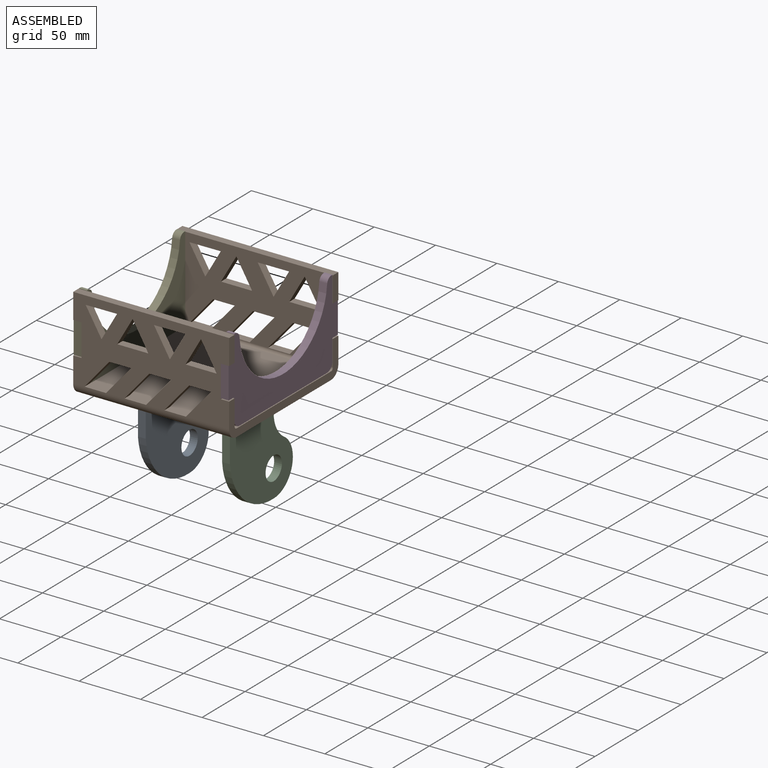
[diagram: assembled view]
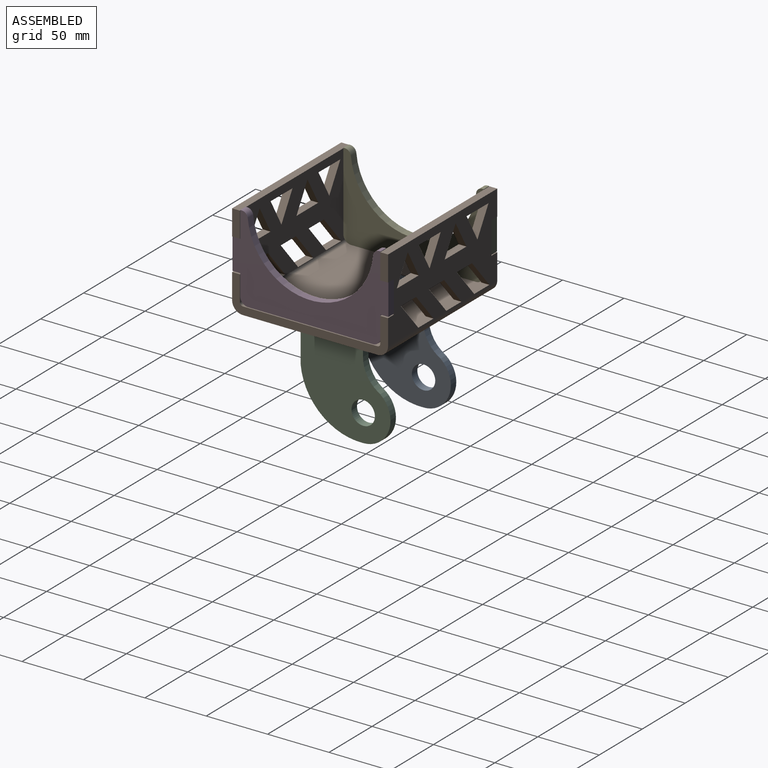
[diagram: assembled view, second angle]
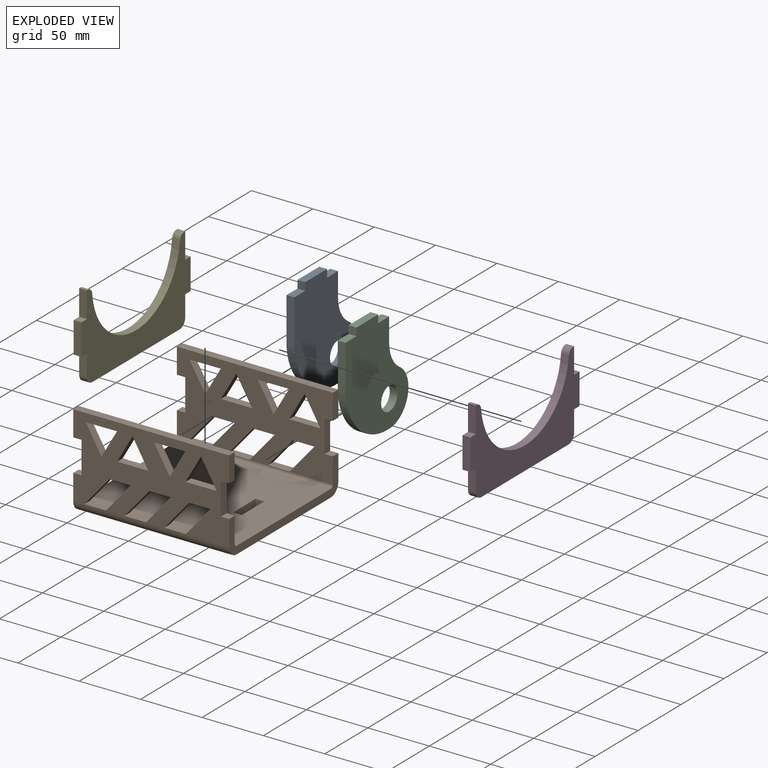
[diagram: exploded view]
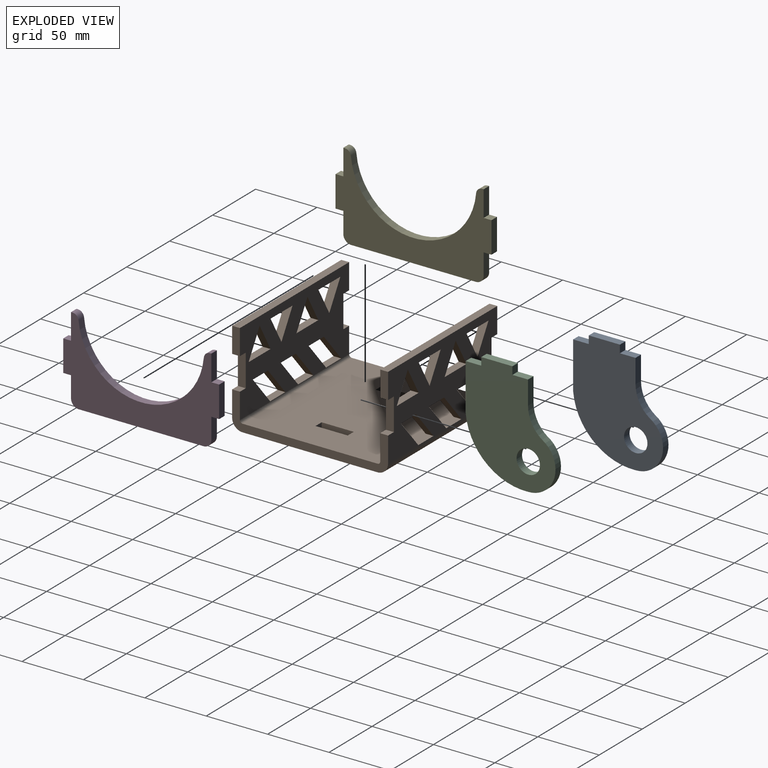
[diagram: exploded view, second angle]
ASSEMBLY  parts=5 mates=4
PART A: 13 faces, bbox 6.4x73.2x89.1 mm
  f0: plane 12.7x6.35mm, normal (0,0,1), area 80.6mm2, adj f1,f3,f4,f11
  f1: plane 89.05x73.21mm, normal (-1,0,0), area 4405.3mm2, adj f0,f2,f4,f5,f6,f7,f8,f9
  f2: plane 19.28x6.35mm, normal (0,1,0), area 122.4mm2, adj f1,f3,f5,f9
  f3: plane 89.05x73.21mm, normal (1,0,0), area 4405.3mm2, adj f0,f2,f4,f5,f6,f7,f8,f9
  f4: plane 38.1x6.35mm, normal (0,-1,0), area 241.9mm2, adj f0,f1,f3,f7
  f5: plane 12.7x6.35mm, normal (0,0,1), area 80.6mm2, adj f1,f2,f3,f10
  f6: cylinder r=9.53mm len=19.05mm, axis (-1,0,0), area 380mm2, adj f1,f3
  f7: cylinder r=49.07mm len=50.8mm, axis (-1,0,0), area 473.3mm2, adj f1,f3,f4,f8
  f8: cylinder r=22.23mm len=41.42mm, axis (-1,0,0), area 370mm2, adj f1,f3,f7,f9
  f9: cylinder r=26.88mm len=21.96mm, axis (-1,0,0), area 163.2mm2, adj f1,f2,f3,f8
  f10: plane 6.35x6.35mm, normal (0,1,0), area 40.3mm2, adj f1,f3,f5,f12
  f11: plane 6.35x6.35mm, normal (0,-1,0), area 40.3mm2, adj f0,f1,f3,f12
  f12: plane 25.4x6.35mm, normal (0,0,1), area 161.3mm2, adj f1,f3,f10,f11
PART B: 94 faces, bbox 127x127x76.2 mm
  f0: plane 20.7x6.35mm, normal (-1,0,0), area 131.5mm2, adj f34,f35,f36,f91
  f1: plane 20.7x6.35mm, normal (1,0,0), area 131.5mm2, adj f2,f35,f36,f90
  f2: plane 6.73x6.35mm, normal (0,0,1), area 42.7mm2, adj f1,f3,f35,f36
  f3: plane 26.16x6.35mm, normal (1,0,0), area 166.1mm2, adj f2,f4,f35,f36
  f4: plane 6.73x6.35mm, normal (0,0,-1), area 42.7mm2, adj f3,f5,f35,f36
  f5: plane 20.7x6.35mm, normal (1,0,0), area 131.5mm2, adj f4,f6,f35,f36
  f6: plane 127x6.35mm, normal (0,0,1), area 806.5mm2, adj f5,f7,f35,f36
  f7: plane 20.7x6.35mm, normal (-1,0,0), area 131.5mm2, adj f6,f8,f35,f36
  f8: plane 6.73x6.35mm, normal (0,0,-1), area 42.7mm2, adj f7,f9,f35,f36
  f9: plane 26.16x6.35mm, normal (-1,0,0), area 166.1mm2, adj f8,f34,f35,f36
  f10: plane 22.03x12.65mm, normal (-0.87,0,0.5), area 161.3mm2, adj f11,f33,f35,f36
  f11: plane 21.88x12.91mm, normal (0.86,0,0.51), area 161.3mm2, adj f10,f33,f35,f36
  f12: plane 23.66x20.22mm, normal (-0.76,0,0.65), area 197.6mm2, adj f13,f32,f35,f36
  f13: plane 17.64x6.35mm, normal (0,0,1), area 112mm2, adj f12,f14,f35,f36
  f14: plane 23.66x20.22mm, normal (0.76,0,-0.65), area 197.6mm2, adj f13,f32,f35,f36
  f15: plane 23.66x20.22mm, normal (-0.76,0,0.65), area 197.6mm2, adj f16,f31,f35,f36
  f16: plane 17.64x6.35mm, normal (0,0,1), area 112mm2, adj f15,f17,f35,f36
  f17: plane 23.66x20.22mm, normal (0.76,0,-0.65), area 197.6mm2, adj f16,f31,f35,f36
  f18: plane 17.64x6.35mm, normal (0,0,1), area 112mm2, adj f19,f30,f35,f36
  f19: plane 23.66x20.22mm, normal (0.76,0,-0.65), area 197.6mm2, adj f18,f20,f35,f36
  f20: plane 17.64x6.35mm, normal (0,0,-1), area 112mm2, adj f19,f30,f35,f36
  f21: plane 22.03x12.65mm, normal (-0.87,0,0.5), area 161.3mm2, adj f22,f29,f35,f36
  f22: plane 21.88x12.91mm, normal (0.86,0,0.51), area 161.3mm2, adj f21,f29,f35,f36
  f23: plane 21.94x12.8mm, normal (-0.86,0,-0.5), area 161.3mm2, adj f24,f28,f35,f36
  f24: plane 25.4x6.35mm, normal (0,0,1), area 161.3mm2, adj f23,f28,f35,f36
  f25: plane 21.94x12.8mm, normal (-0.86,0,-0.5), area 161.3mm2, adj f26,f27,f35,f36
  f26: plane 25.4x6.35mm, normal (0,0,1), area 161.3mm2, adj f25,f27,f35,f36
  f27: plane 21.94x12.6mm, normal (0.87,0,-0.5), area 160.6mm2, adj f25,f26,f35,f36
  f28: plane 21.94x12.6mm, normal (0.87,0,-0.5), area 160.6mm2, adj f23,f24,f35,f36
  f29: plane 25.56x6.35mm, normal (0.01,0,-1), area 162.3mm2, adj f21,f22,f35,f36
  f30: plane 23.66x20.22mm, normal (-0.76,0,0.65), area 197.6mm2, adj f18,f20,f35,f36
  f31: plane 17.64x6.35mm, normal (0,0,-1), area 112mm2, adj f15,f17,f35,f36
  f32: plane 17.64x6.35mm, normal (0,0,-1), area 112mm2, adj f12,f14,f35,f36
  f33: plane 25.56x6.35mm, normal (0.01,0,-1), area 162.3mm2, adj f10,f11,f35,f36
  f34: plane 6.73x6.35mm, normal (0,0,1), area 42.7mm2, adj f0,f9,f35,f36
  f35: plane 127x67.56mm, normal (0,-1,0), area 5858mm2, adj f0,f1,f2,f3,f4,f5,f6,f7
  f36: plane 127x67.56mm, normal (0,1,0), area 5858mm2, adj f0,f1,f2,f3,f4,f5,f6,f7
  f37: plane 109.73x6.35mm, normal (-1,0,0), area 696.8mm2, adj f47,f48,f87,f91
  f38: plane 109.73x6.35mm, normal (1,0,0), area 696.8mm2, adj f47,f48,f86,f90
  f39: plane 7.11x6.35mm, normal (0,-1,0), area 45.2mm2, adj f40,f46,f47,f48
  f40: plane 26.16x6.35mm, normal (-1,0,0), area 166.1mm2, adj f39,f41,f47,f48
  f41: plane 7.11x6.35mm, normal (0,1,0), area 45.2mm2, adj f40,f46,f47,f48
  f42: plane 26.16x6.35mm, normal (1,0,0), area 166.1mm2, adj f43,f45,f47,f48
  f43: plane 7.11x6.35mm, normal (0,-1,0), area 45.2mm2, adj f42,f44,f47,f48
  f44: plane 26.16x6.35mm, normal (-1,0,0), area 166.1mm2, adj f43,f45,f47,f48
  f45: plane 7.11x6.35mm, normal (0,1,0), area 45.2mm2, adj f42,f44,f47,f48
  f46: plane 26.16x6.35mm, normal (1,0,0), area 166.1mm2, adj f39,f41,f47,f48
  f47: plane 127x109.73mm, normal (0,0,1), area 13563.3mm2, adj f37,f38,f39,f40,f41,f42,f43,f44
  f48: plane 127x109.73mm, normal (0,0,-1), area 13563.3mm2, adj f37,f38,f39,f40,f41,f42,f43,f44
  f49: plane 26.16x6.35mm, normal (-1,0,0), area 166.1mm2, adj f50,f83,f84,f85
  f50: plane 6.73x6.35mm, normal (0,0,-1), area 42.7mm2, adj f49,f51,f84,f85
  f51: plane 20.7x6.35mm, normal (-1,0,0), area 131.5mm2, adj f50,f52,f84,f85
  f52: plane 127x6.35mm, normal (0,0,1), area 806.5mm2, adj f51,f53,f84,f85
  f53: plane 20.7x6.35mm, normal (1,0,0), area 131.5mm2, adj f52,f54,f84,f85
  f54: plane 6.73x6.35mm, normal (0,0,-1), area 42.7mm2, adj f53,f55,f84,f85
  f55: plane 26.16x6.35mm, normal (1,0,0), area 166.1mm2, adj f54,f56,f84,f85
  f56: plane 6.73x6.35mm, normal (0,0,1), area 42.7mm2, adj f55,f57,f84,f85
  f57: plane 20.7x6.35mm, normal (1,0,0), area 131.5mm2, adj f56,f84,f85,f86
  f58: plane 20.7x6.35mm, normal (-1,0,0), area 131.5mm2, adj f83,f84,f85,f87
  f59: plane 21.88x12.91mm, normal (0.86,0,0.51), area 161.3mm2, adj f60,f82,f84,f85
  f60: plane 22.03x12.65mm, normal (-0.87,0,0.5), area 161.3mm2, adj f59,f82,f84,f85
  f61: plane 23.66x20.22mm, normal (0.76,0,-0.65), area 197.6mm2, adj f62,f81,f84,f85
  f62: plane 17.64x6.35mm, normal (0,0,1), area 112mm2, adj f61,f63,f84,f85
  f63: plane 23.66x20.22mm, normal (-0.76,0,0.65), area 197.6mm2, adj f62,f81,f84,f85
  f64: plane 23.66x20.22mm, normal (0.76,0,-0.65), area 197.6mm2, adj f65,f80,f84,f85
  f65: plane 17.64x6.35mm, normal (0,0,1), area 112mm2, adj f64,f66,f84,f85
  f66: plane 23.66x20.22mm, normal (-0.76,0,0.65), area 197.6mm2, adj f65,f80,f84,f85
  f67: plane 17.64x6.35mm, normal (0,0,-1), area 112mm2, adj f68,f79,f84,f85
  f68: plane 23.66x20.22mm, normal (0.76,0,-0.65), area 197.6mm2, adj f67,f69,f84,f85
  f69: plane 17.64x6.35mm, normal (0,0,1), area 112mm2, adj f68,f79,f84,f85
  f70: plane 21.88x12.91mm, normal (0.86,0,0.51), area 161.3mm2, adj f71,f78,f84,f85
  f71: plane 22.03x12.65mm, normal (-0.87,0,0.5), area 161.3mm2, adj f70,f78,f84,f85
  f72: plane 21.94x12.6mm, normal (0.87,0,-0.5), area 160.6mm2, adj f73,f77,f84,f85
  f73: plane 25.4x6.35mm, normal (0,0,1), area 161.3mm2, adj f72,f77,f84,f85
  f74: plane 21.94x12.6mm, normal (0.87,0,-0.5), area 160.6mm2, adj f75,f76,f84,f85
  f75: plane 25.4x6.35mm, normal (0,0,1), area 161.3mm2, adj f74,f76,f84,f85
  f76: plane 21.94x12.8mm, normal (-0.86,0,-0.5), area 161.3mm2, adj f74,f75,f84,f85
  f77: plane 21.94x12.8mm, normal (-0.86,0,-0.5), area 161.3mm2, adj f72,f73,f84,f85
  f78: plane 25.56x6.35mm, normal (0.01,0,-1), area 162.3mm2, adj f70,f71,f84,f85
  f79: plane 23.66x20.22mm, normal (-0.76,0,0.65), area 197.6mm2, adj f67,f69,f84,f85
  f80: plane 17.64x6.35mm, normal (0,0,-1), area 112mm2, adj f64,f66,f84,f85
  f81: plane 17.64x6.35mm, normal (0,0,-1), area 112mm2, adj f61,f63,f84,f85
  f82: plane 25.56x6.35mm, normal (0.01,0,-1), area 162.3mm2, adj f59,f60,f84,f85
  f83: plane 6.73x6.35mm, normal (0,0,1), area 42.7mm2, adj f49,f58,f84,f85
  f84: plane 127x67.56mm, normal (0,1,0), area 5858mm2, adj f49,f50,f51,f52,f53,f54,f55,f56
  f85: plane 127x67.56mm, normal (0,-1,0), area 5858mm2, adj f49,f50,f51,f52,f53,f54,f55,f56
  f86: plane 8.64x8.64mm, normal (1,0,0), area 54.5mm2, adj f38,f57,f88,f89
  f87: plane 8.64x8.64mm, normal (-1,0,0), area 54.5mm2, adj f37,f58,f88,f89
  f88: cylinder r=8.64mm len=127mm, axis (1,0,0), area 1722.8mm2, adj f48,f85,f86,f87
  f89: cylinder r=2.29mm len=127mm, axis (1,0,0), area 456mm2, adj f47,f84,f86,f87
  f90: plane 8.64x8.64mm, normal (1,0,0), area 54.5mm2, adj f1,f38,f92,f93
  f91: plane 8.64x8.64mm, normal (-1,0,0), area 54.5mm2, adj f0,f37,f92,f93
  f92: cylinder r=8.64mm len=127mm, axis (1,0,0), area 1722.8mm2, adj f36,f48,f90,f91
  f93: cylinder r=2.29mm len=127mm, axis (1,0,0), area 456mm2, adj f35,f47,f90,f91
PART C: 13 faces, bbox 6.4x73.2x89.1 mm
  f0: plane 12.7x6.35mm, normal (0,0,1), area 80.6mm2, adj f2,f3,f4,f11
  f1: plane 19.28x6.35mm, normal (0,1,0), area 122.4mm2, adj f2,f3,f5,f9
  f2: plane 89.05x73.21mm, normal (-1,0,0), area 4405.3mm2, adj f0,f1,f4,f5,f6,f7,f8,f9
  f3: plane 89.05x73.21mm, normal (1,0,0), area 4405.3mm2, adj f0,f1,f4,f5,f6,f7,f8,f9
  f4: plane 38.1x6.35mm, normal (0,-1,0), area 241.9mm2, adj f0,f2,f3,f7
  f5: plane 12.7x6.35mm, normal (0,0,1), area 80.6mm2, adj f1,f2,f3,f10
  f6: cylinder r=9.53mm len=19.05mm, axis (-1,0,0), area 380mm2, adj f2,f3
  f7: cylinder r=49.07mm len=50.8mm, axis (-1,0,0), area 473.3mm2, adj f2,f3,f4,f8
  f8: cylinder r=22.23mm len=41.42mm, axis (-1,0,0), area 370mm2, adj f2,f3,f7,f9
  f9: cylinder r=26.88mm len=21.96mm, axis (-1,0,0), area 163.2mm2, adj f1,f2,f3,f8
  f10: plane 6.35x6.35mm, normal (0,1,0), area 40.3mm2, adj f2,f3,f5,f12
  f11: plane 6.35x6.35mm, normal (0,-1,0), area 40.3mm2, adj f0,f2,f3,f12
  f12: plane 25.4x6.35mm, normal (0,0,1), area 161.3mm2, adj f2,f3,f10,f11
PART D: 20 faces, bbox 6.4x127x69.9 mm
  f0: plane 6.35x6.35mm, normal (0,0,-1), area 40.3mm2, adj f1,f15,f16,f17
  f1: plane 25.4x6.35mm, normal (0,1,0), area 161.3mm2, adj f0,f2,f16,f17
  f2: plane 6.35x6.35mm, normal (0,0,1), area 40.3mm2, adj f1,f3,f16,f17
  f3: plane 21.08x6.35mm, normal (0,1,0), area 133.9mm2, adj f2,f4,f16,f17
  f4: plane 6.35x1.11mm, normal (0,0,1), area 7mm2, adj f3,f16,f17,f18
  f5: cylinder r=51.19mm len=101.97mm, axis (1,0,0), area 962.5mm2, adj f16,f17,f18,f19
  f6: plane 6.35x1.11mm, normal (0,0,1), area 7mm2, adj f7,f16,f17,f19
  f7: plane 21.08x6.35mm, normal (0,-1,0), area 133.9mm2, adj f6,f8,f16,f17
  f8: plane 6.35x6.35mm, normal (0,0,1), area 40.3mm2, adj f7,f9,f16,f17
  f9: plane 25.4x6.35mm, normal (0,-1,0), area 161.3mm2, adj f8,f10,f16,f17
  f10: plane 6.35x6.35mm, normal (0,0,-1), area 40.3mm2, adj f9,f11,f16,f17
  f11: plane 17.02x6.35mm, normal (0,-1,0), area 108.1mm2, adj f10,f12,f16,f17
  f12: cylinder r=6.35mm len=6.35mm, axis (1,0,0), area 63.3mm2, adj f11,f13,f16,f17
  f13: plane 101.6x6.35mm, normal (0,0,-1), area 645.2mm2, adj f12,f14,f16,f17
  f14: cylinder r=6.35mm len=6.35mm, axis (1,0,0), area 63.3mm2, adj f13,f15,f16,f17
  f15: plane 17.02x6.35mm, normal (0,1,0), area 108.1mm2, adj f0,f14,f16,f17
  f16: plane 127x69.85mm, normal (-1,0,0), area 4162.8mm2, adj f0,f1,f2,f3,f4,f5,f6,f7
  f17: plane 127x69.85mm, normal (1,0,0), area 4162.8mm2, adj f0,f1,f2,f3,f4,f5,f6,f7
  f18: cylinder r=5.08mm len=6.35mm, axis (1,0,0), area 47.8mm2, adj f4,f5,f16,f17
  f19: cylinder r=5.08mm len=6.35mm, axis (1,0,0), area 47.8mm2, adj f5,f6,f16,f17
PART E: same geometry as D
PLACE A t=(-70.92,26.33,-14.88)mm
PLACE B t=(-147.5,25.95,-14.88)mm fixed
PLACE C t=(68.02,25.57,-14.88)mm
PLACE D t=(-147.88,25.95,-14.5)mm
PLACE E t=(-267.77,25.95,-14.5)mm
MATE fastened A.f10 <-> B.f43  axis (0,1,0) through (-19.15,35.61,-8.53)mm
MATE fastened E.f17 <-> B.f9  axis (1,0,0) through (-44.55,86.03,40.62)mm
MATE fastened B.f55 <-> D.f16  axis (1,0,0) through (68.99,-40.97,40.62)mm
MATE fastened C.f11 <-> B.f41  axis (0,-1,0) through (43.59,9.45,-8.53)mm
